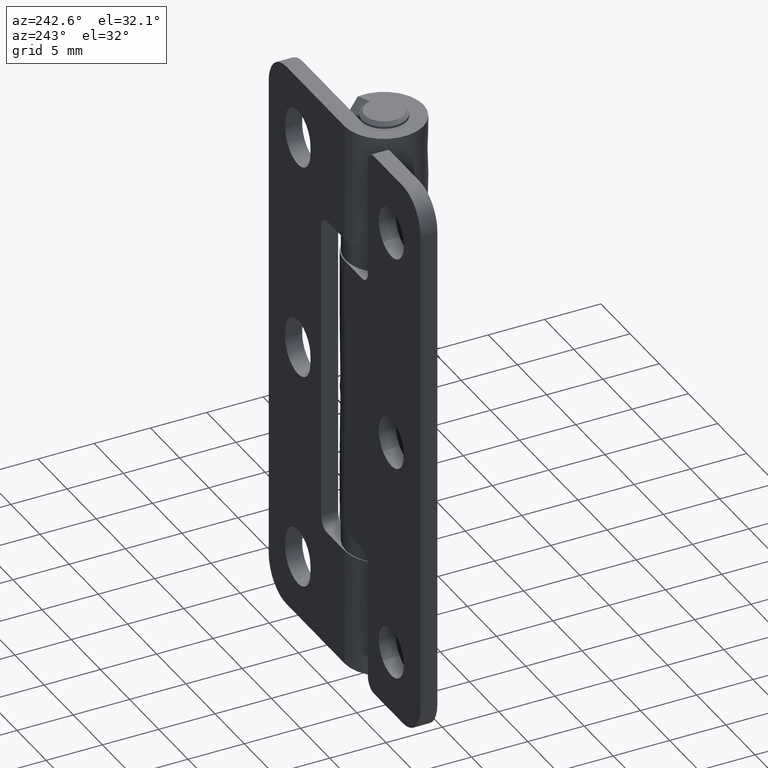
[diagram: clean part render]
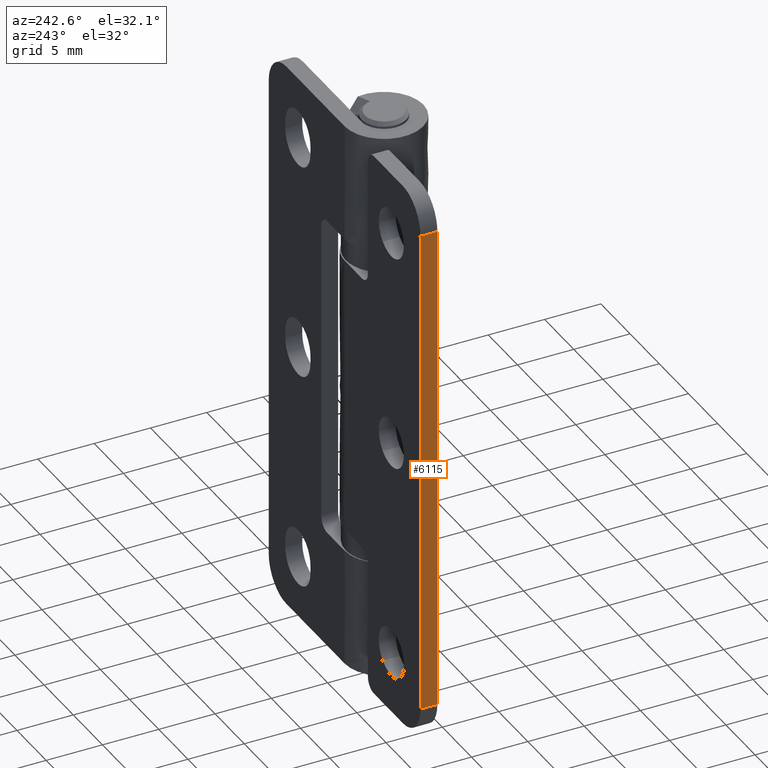
[diagram: same view with one face highlighted and labeled with its STEP entity id]
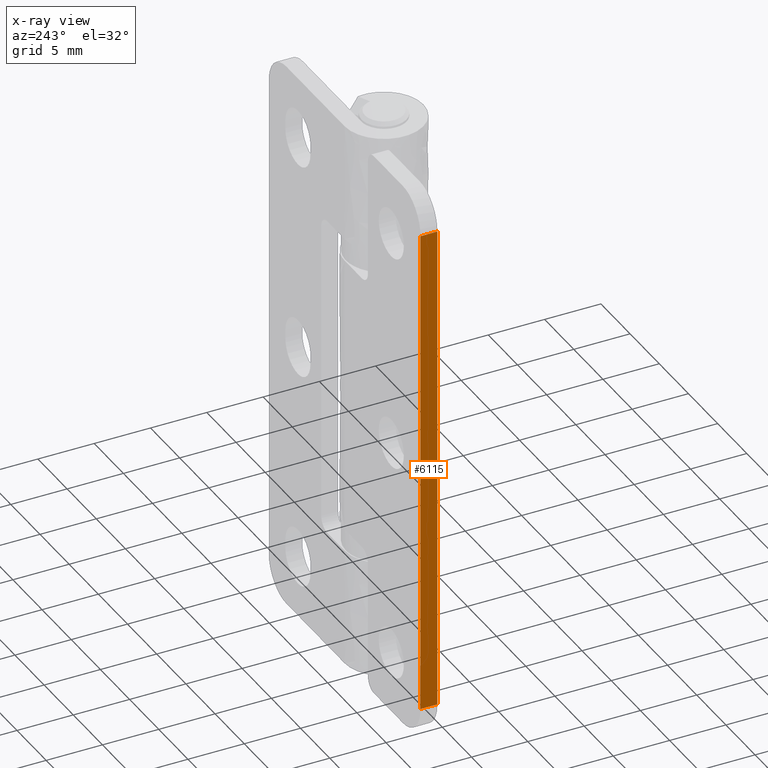
[diagram: x-ray of the same camera — body ghosted, the highlighted face saturated]
A machine part, auxiliary view. The second image highlights one B-rep face of the part: STEP entity #6115.
The next image is the same camera in x-ray: the body ghosted, the highlighted face saturated — about 0% of this face is hidden behind the body in this view.
In plain terms, the highlighted face is a freeform B-spline surface patch.
Its self-contained STEP definition (entity closure, byte-faithful):
#5934=CARTESIAN_POINT('',(-13.000000000000901,2.0,47.0));
#5935=VERTEX_POINT('',#5934);
#5956=CARTESIAN_POINT('',(-13.000000000000901,3.500000000000000,47.0));
#5957=VERTEX_POINT('',#5956);
#5971=CARTESIAN_POINT('',(-13.000000000000901,2.0,47.0));
#5972=CARTESIAN_POINT('',(-13.000000000000901,3.500000000000000,47.0));
#5973=QUASI_UNIFORM_CURVE('',1,(#5971,#5972),.UNSPECIFIED.,.F.,.U.);
#5974=EDGE_CURVE('',#5935,#5957,#5973,.T.);
#5993=CARTESIAN_POINT('',(-13.000000000000901,2.0,3.0));
#5994=VERTEX_POINT('',#5993);
#6010=CARTESIAN_POINT('',(-13.000000000000901,3.500000000000000,3.0));
#6011=VERTEX_POINT('',#6010);
#6012=CARTESIAN_POINT('',(-13.000000000000901,3.500000000000000,3.0));
#6013=CARTESIAN_POINT('',(-13.000000000000901,2.0,3.0));
#6014=QUASI_UNIFORM_CURVE('',1,(#6012,#6013),.UNSPECIFIED.,.F.,.U.);
#6015=EDGE_CURVE('',#6011,#5994,#6014,.T.);
#6096=CARTESIAN_POINT('',(-13.000000000000901,1.925075002907291,0.802200085280539));
#6097=CARTESIAN_POINT('',(-13.000000000000901,1.925075002907291,49.197801094891432));
#6098=CARTESIAN_POINT('',(-13.000000000000901,3.574925037325845,0.802200085280539));
#6099=CARTESIAN_POINT('',(-13.000000000000901,3.574925037325845,49.197801094891432));
#6100=B_SPLINE_SURFACE_WITH_KNOTS('',1,1,((#6096,#6098),(#6097,#6099)),.UNSPECIFIED.,.F.,.F.,.U.,(2,2),(2,2),(0.0,48.395601009610893),(0.041708334948495,0.958291687403247),.UNSPECIFIED.);
#6101=CARTESIAN_POINT('',(-13.000000000000901,3.500000000000000,47.0));
#6102=CARTESIAN_POINT('',(-13.000000000000901,3.500000000000000,3.0));
#6103=QUASI_UNIFORM_CURVE('',1,(#6101,#6102),.UNSPECIFIED.,.F.,.U.);
#6104=EDGE_CURVE('',#5957,#6011,#6103,.T.);
#6105=ORIENTED_EDGE('',*,*,#6104,.T.);
#6106=ORIENTED_EDGE('',*,*,#6015,.T.);
#6107=CARTESIAN_POINT('',(-13.000000000000901,2.0,47.0));
#6108=CARTESIAN_POINT('',(-13.000000000000901,2.0,3.0));
#6109=QUASI_UNIFORM_CURVE('',1,(#6107,#6108),.UNSPECIFIED.,.F.,.U.);
#6110=EDGE_CURVE('',#5935,#5994,#6109,.T.);
#6111=ORIENTED_EDGE('',*,*,#6110,.F.);
#6112=ORIENTED_EDGE('',*,*,#5974,.T.);
#6113=EDGE_LOOP('',(#6105,#6106,#6111,#6112));
#6114=FACE_OUTER_BOUND('',#6113,.T.);
#6115=ADVANCED_FACE('',(#6114),#6100,.T.);